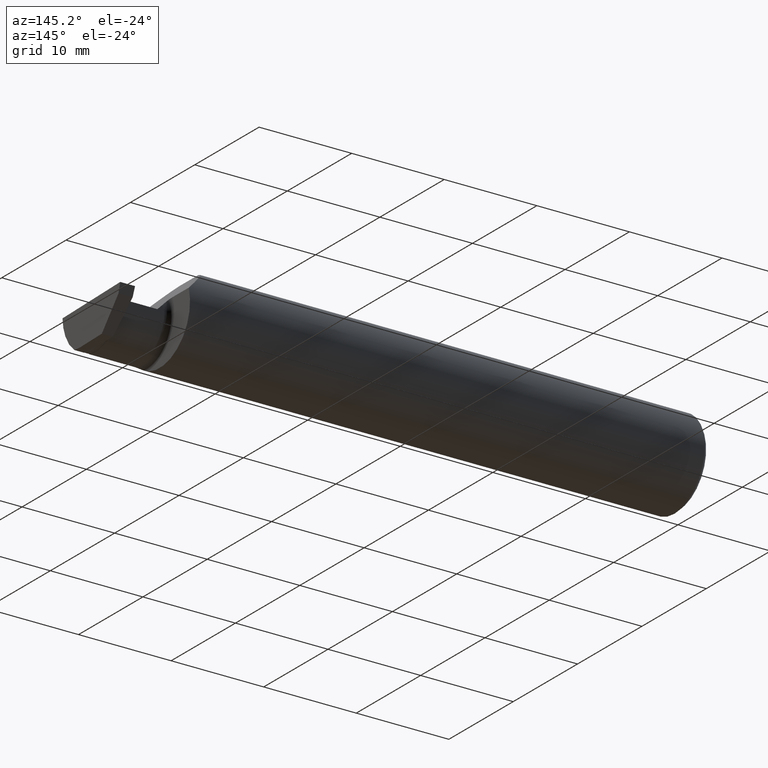
[diagram: clean part render]
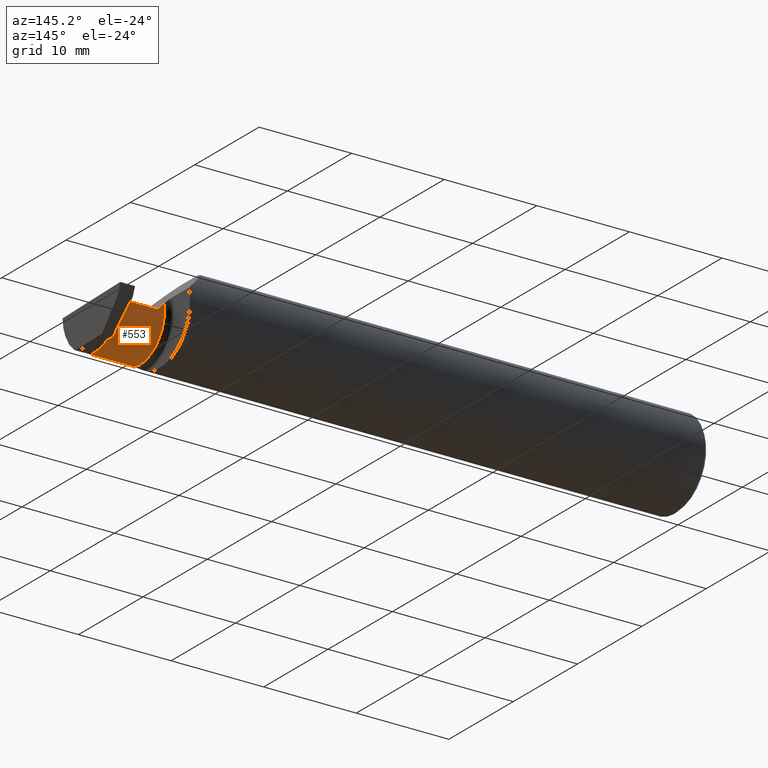
[diagram: same view with one face highlighted and labeled with its STEP entity id]
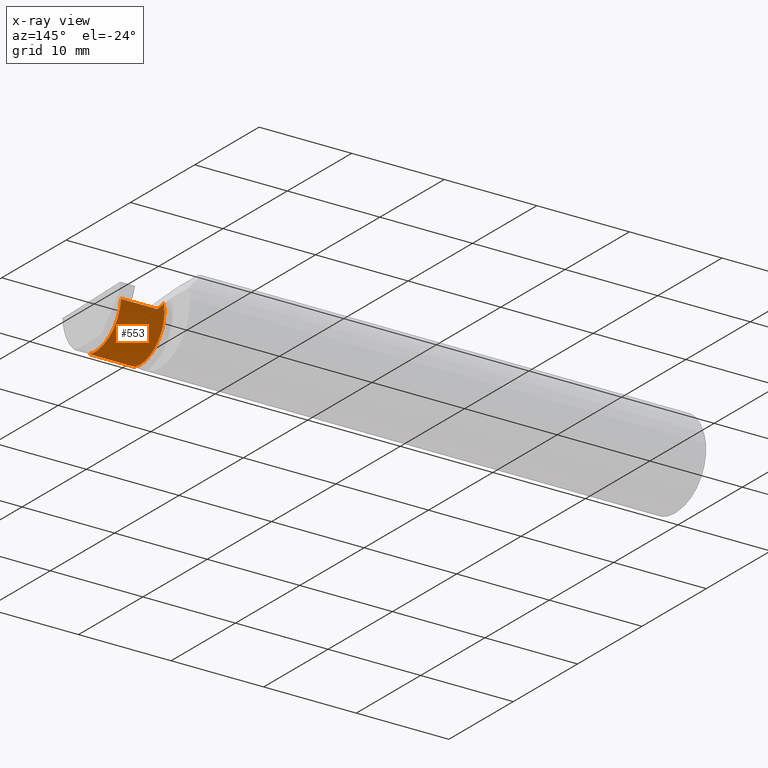
[diagram: x-ray of the same camera — body ghosted, the highlighted face saturated]
A machine part, auxiliary view. The second image highlights one B-rep face of the part: STEP entity #553.
The next image is the same camera in x-ray: the body ghosted, the highlighted face saturated — about 0% of this face is hidden behind the body in this view.
In plain terms, the highlighted cylindrical surface (partial cylindrical patch) has radius 3.81 mm, axis along (-1, -0, -0).
Its self-contained STEP definition (entity closure, byte-faithful):
#15 = CARTESIAN_POINT ( 'NONE',  ( 2.249915058064202000, 0.06665000000000002867, 0.01008494193579769112 ) ) ;
#36 = EDGE_CURVE ( 'NONE', #796, #512, #746, .T. ) ;
#69 = ORIENTED_EDGE ( 'NONE', *, *, #36, .T. ) ;
#70 = CARTESIAN_POINT ( 'NONE',  ( 2.420647357912071751, -0.1172600179964006784, -0.1461167706989302817 ) ) ;
#120 = DIRECTION ( 'NONE',  ( 0.000000000000000000, 0.000000000000000000, 1.000000000000000000 ) ) ;
#127 = CARTESIAN_POINT ( 'NONE',  ( 2.420045875320089301, -0.008364425653423200949, -0.1303958802878500689 ) ) ;
#131 = CARTESIAN_POINT ( 'NONE',  ( 2.420789354013295647, -0.09504051968915383508, -0.1499699712450645595 ) ) ;
#135 = CARTESIAN_POINT ( 'NONE',  ( 2.415000000000238956, 0.06664999999976051193, 8.151265848729768027E-18 ) ) ;
#139 = AXIS2_PLACEMENT_3D ( 'NONE', #827, #771, #120 ) ;
#148 = ORIENTED_EDGE ( 'NONE', *, *, #683, .T. ) ;
#178 = EDGE_CURVE ( 'NONE', #796, #887, #878, .T. ) ;
#269 = VERTEX_POINT ( 'NONE', #70 ) ;
#292 = CARTESIAN_POINT ( 'NONE',  ( 2.416687655002902169, 0.06031148507864444314, -0.04459181019198452112 ) ) ;
#293 = ORIENTED_EDGE ( 'NONE', *, *, #178, .F. ) ;
#340 = CARTESIAN_POINT ( 'NONE',  ( 2.229999999999999982, 0.06361938456699062217, 0.03000000000000040135 ) ) ;
#353 = FACE_OUTER_BOUND ( 'NONE', #598, .T. ) ;
#361 = CARTESIAN_POINT ( 'NONE',  ( 2.420647357912071751, -0.1172600179964006784, -0.1461167706989302817 ) ) ;
#371 = CARTESIAN_POINT ( 'NONE',  ( 2.229999999999999982, 0.06361938456699062217, 0.03000000000000040135 ) ) ;
#405 = EDGE_CURVE ( 'NONE', #512, #739, #688, .T. ) ;
#427 = CARTESIAN_POINT ( 'NONE',  ( 2.417128377981301313, 0.05660152697937536476, -0.05513071428293379178 ) ) ;
#433 = CARTESIAN_POINT ( 'NONE',  ( 2.419238728197072419, 0.01877817835636816368, -0.1104401980502119351 ) ) ;
#440 = CARTESIAN_POINT ( 'NONE',  ( 2.418258849604418614, 0.04075339265140123096, -0.08498987352755869862 ) ) ;
#479 = CARTESIAN_POINT ( 'NONE',  ( 2.415000000000238956, 0.06664999999976051193, 8.151265848729768027E-18 ) ) ;
#496 = DIRECTION ( 'NONE',  ( -1.000000000000000000, -0.000000000000000000, -0.000000000000000000 ) ) ;
#506 = ORIENTED_EDGE ( 'NONE', *, *, #599, .T. ) ;
#510 = CARTESIAN_POINT ( 'NONE',  ( 2.205000000000000071, -0.08334999999999996578, 0.000000000000000000 ) ) ;
#512 = VERTEX_POINT ( 'NONE', #709 ) ;
#514 = AXIS2_PLACEMENT_3D ( 'NONE', #510, #496, #713 ) ;
#524 = CARTESIAN_POINT ( 'NONE',  ( 2.330999999999999961, -0.1172600179964007061, -0.1461167706989303094 ) ) ;
#528 = CARTESIAN_POINT ( 'NONE',  ( 2.260000000000000231, 0.06665000000000002867, 2.939152317953647352E-17 ) ) ;
#553 = ADVANCED_FACE ( 'NONE', ( #353 ), #784, .T. ) ;
#590 = CARTESIAN_POINT ( 'NONE',  ( 2.420733776974464568, -0.1062136809842561119, -0.1486803469748387285 ) ) ;
#598 = EDGE_LOOP ( 'NONE', ( #612, #506, #148, #293, #69 ) ) ;
#599 = EDGE_CURVE ( 'NONE', #739, #269, #818, .T. ) ;
#612 = ORIENTED_EDGE ( 'NONE', *, *, #405, .T. ) ;
#614 = LINE ( 'NONE', #524, #902 ) ;
#634 = DIRECTION ( 'NONE',  ( 1.000000000000000000, 0.000000000000000000, 0.000000000000000000 ) ) ;
#643 = CARTESIAN_POINT ( 'NONE',  ( 2.415837565180690039, 0.06536221398472423505, -0.02262143326496233661 ) ) ;
#683 = EDGE_CURVE ( 'NONE', #269, #887, #614, .T. ) ;
#685 = CARTESIAN_POINT ( 'NONE',  ( 2.205000000000000071, 0.06665000000000002867, 3.612708057484693206E-17 ) ) ;
#687 = VECTOR ( 'NONE', #634, 39.37007874015748143 ) ;
#688 = LINE ( 'NONE', #685, #687 ) ;
#709 = CARTESIAN_POINT ( 'NONE',  ( 2.260000000000000231, 0.06665000000000002867, 2.939152317953647352E-17 ) ) ;
#713 = DIRECTION ( 'NONE',  ( 0.000000000000000000, 0.000000000000000000, 1.000000000000000000 ) ) ;
#717 = CARTESIAN_POINT ( 'NONE',  ( 2.420382016119699831, -0.02860031648332563015, -0.1401013708389511614 ) ) ;
#723 = CARTESIAN_POINT ( 'NONE',  ( 2.420526927492076652, -0.03939163987493481817, -0.1438495499766856978 ) ) ;
#739 = VERTEX_POINT ( 'NONE', #479 ) ;
#746 =( BOUNDED_CURVE ( )  B_SPLINE_CURVE ( 3, ( #371, #798, #15, #528 ),
 .UNSPECIFIED., .F., .F. ) 
 B_SPLINE_CURVE_WITH_KNOTS ( ( 4, 4 ),
 ( 1.369438406004563014, 1.570796326794896558 ),
 .UNSPECIFIED. ) 
 CURVE ( )  GEOMETRIC_REPRESENTATION_ITEM ( )  RATIONAL_B_SPLINE_CURVE ( ( 1.000000000000000000, 0.9966241020034158904, 0.9966241020034158904, 1.000000000000000000 ) ) 
 REPRESENTATION_ITEM ( '' )  );
#771 = DIRECTION ( 'NONE',  ( -1.000000000000000000, -0.000000000000000000, -0.000000000000000000 ) ) ;
#776 = CARTESIAN_POINT ( 'NONE',  ( 2.420759545742892538, -0.06120540479234105186, -0.1487771735061156064 ) ) ;
#781 = CARTESIAN_POINT ( 'NONE',  ( 2.415434863969376345, 0.06664999999766242633, -0.01133157913200500723 ) ) ;
#784 = CYLINDRICAL_SURFACE ( 'NONE', #514, 0.1499999999999999944 ) ;
#796 = VERTEX_POINT ( 'NONE', #340 ) ;
#798 = CARTESIAN_POINT ( 'NONE',  ( 2.239881184731320030, 0.06563637295415017392, 0.02011881526868028805 ) ) ;
#818 = B_SPLINE_CURVE_WITH_KNOTS ( 'NONE', 3,
 ( #135, #781, #643, #292, #427, #847, #440, #856, #433, #918, #127, #717, #723, #776, #915, #131, #590, #361 ),
 .UNSPECIFIED., .F., .F.,
 ( 4, 2, 2, 2, 2, 2, 2, 2, 4 ),
 ( 0.000000000000000000, 0.0008601684364663035511, 0.001720336872932607102, 0.002580505309398911304, 0.003440673745865215939, 0.004300842182331519707, 0.005161010618797822608, 0.006021179055264126376, 0.006881347491730430144 ),
 .UNSPECIFIED. ) ;
#827 = CARTESIAN_POINT ( 'NONE',  ( 2.229999999999999982, -0.08334999999999996578, 0.000000000000000000 ) ) ;
#847 = CARTESIAN_POINT ( 'NONE',  ( 2.417931528627715210, 0.04684530297165552526, -0.07533265324760661519 ) ) ;
#856 = CARTESIAN_POINT ( 'NONE',  ( 2.418904851935524292, 0.02678675199522690883, -0.1024442605994116545 ) ) ;
#878 = CIRCLE ( 'NONE', #139, 0.1499999999999999944 ) ;
#880 = DIRECTION ( 'NONE',  ( -1.000000000000000000, -0.000000000000000000, -0.000000000000000000 ) ) ;
#887 = VERTEX_POINT ( 'NONE', #917 ) ;
#902 = VECTOR ( 'NONE', #880, 39.37007874015748143 ) ;
#915 = CARTESIAN_POINT ( 'NONE',  ( 2.420815130903235968, -0.07244320528229479528, -0.1500290050451372481 ) ) ;
#917 = CARTESIAN_POINT ( 'NONE',  ( 2.229999999999999982, -0.1172600179964006922, -0.1461167706989303094 ) ) ;
#918 = CARTESIAN_POINT ( 'NONE',  ( 2.419833771563156599, 0.001115444352405591411, -0.1244700400502500720 ) ) ;